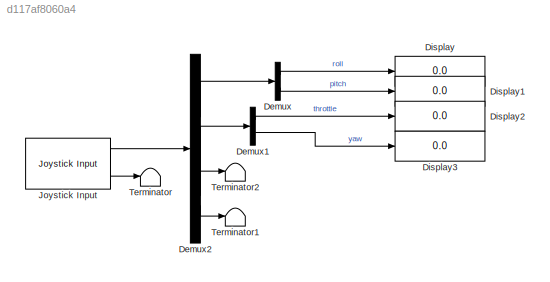
MODEL slx_d117af8060a4
KIND model
CONFIG AbsTol = auto
CONFIG EnableMultiTasking = off
CONFIG FixedStep = auto
CONFIG MaxStep = auto
CONFIG MinStep = auto
CONFIG RelTol = 1e-3
CONFIG SampleTimeConstraint = Unconstrained
CONFIG SolverName = VariableStepAuto
CONFIG StartTime = 0.0
CONFIG StopTime = inf
BLOCK [Demux] Demux
  Outputs = 2
BLOCK [Demux] Demux1
  Outputs = 2
BLOCK [Demux] Demux2
BLOCK [Display] Display
  Decimation = 1
BLOCK [Display] Display1
  Decimation = 1
BLOCK [Display] Display2
  Decimation = 1
BLOCK [Display] Display3
  Decimation = 1
BLOCK [Reference] Joystick Input  REF=vrlib/Joystick Input
  SourceBlock = vrlib/Joystick Input
  SourceType = Joystick Input
BLOCK [Terminator] Terminator
BLOCK [Terminator] Terminator1
BLOCK [Terminator] Terminator2
LINE Demux1:1 -> Display2:1
LINE Demux1:2 -> Display3:1
LINE Demux2:1 -> Demux:1
LINE Demux2:2 -> Demux1:1
LINE Demux2:3 -> Terminator2:1
LINE Demux2:4 -> Terminator1:1
LINE Demux:1 -> Display:1
LINE Demux:2 -> Display1:1
LINE Joystick Input:1 -> Demux2:1
LINE Joystick Input:2 -> Terminator:1
